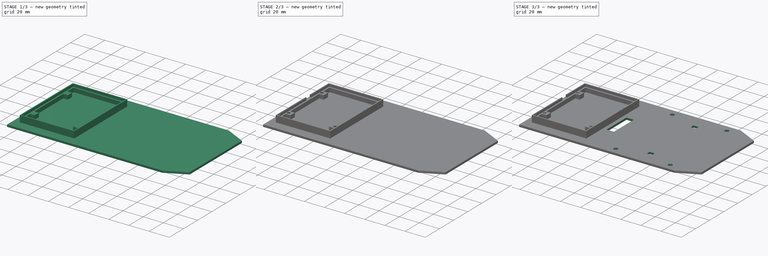
[diagram: build sequence overview — one tinted view per stage of 3, left to right]
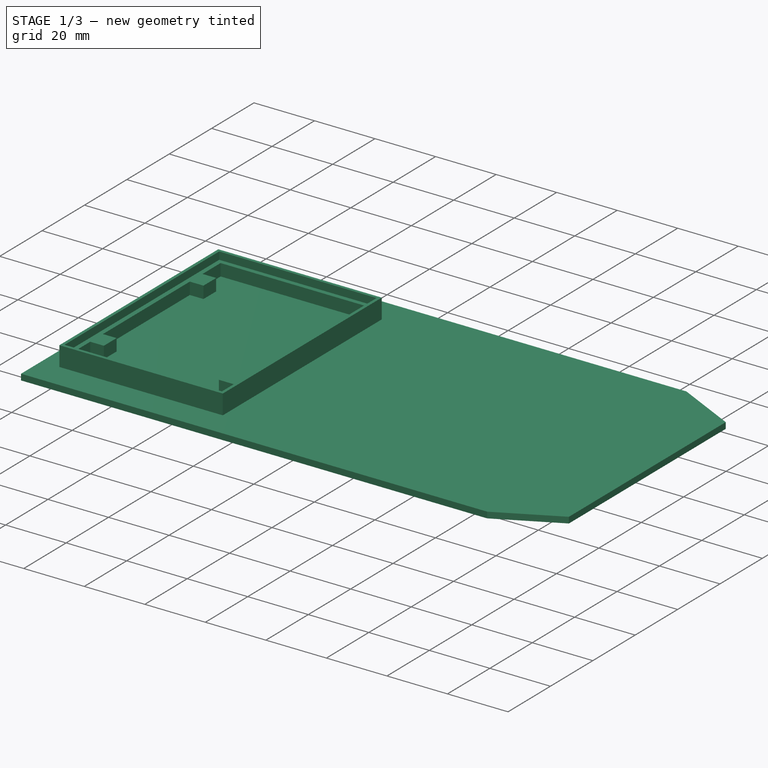
[diagram: stage 1 of 3 — iso view after this stage's code; geometry added in this stage tinted green]
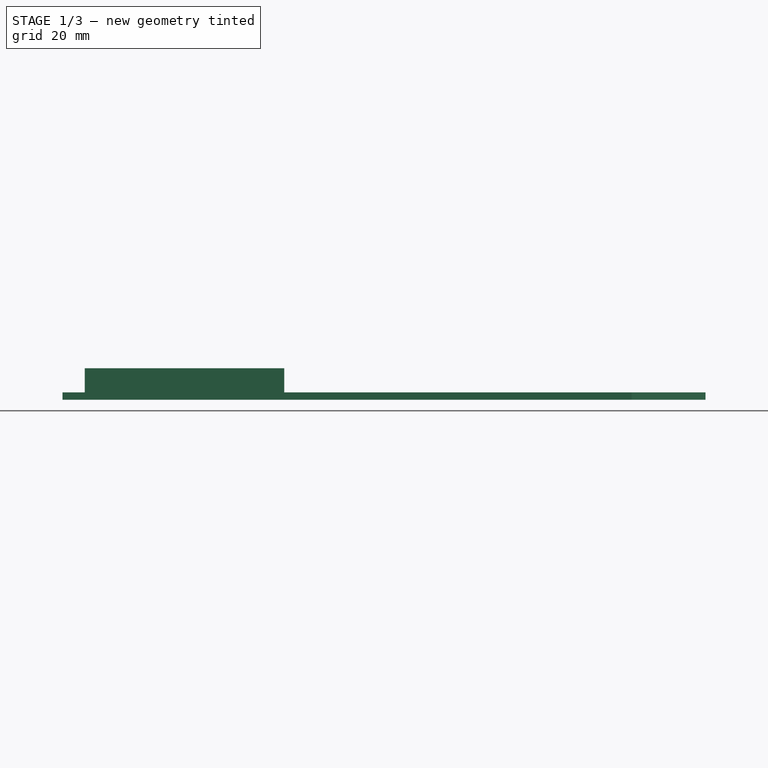
[diagram: stage 1 of 3 — front view after this stage's code; geometry added in this stage tinted green]
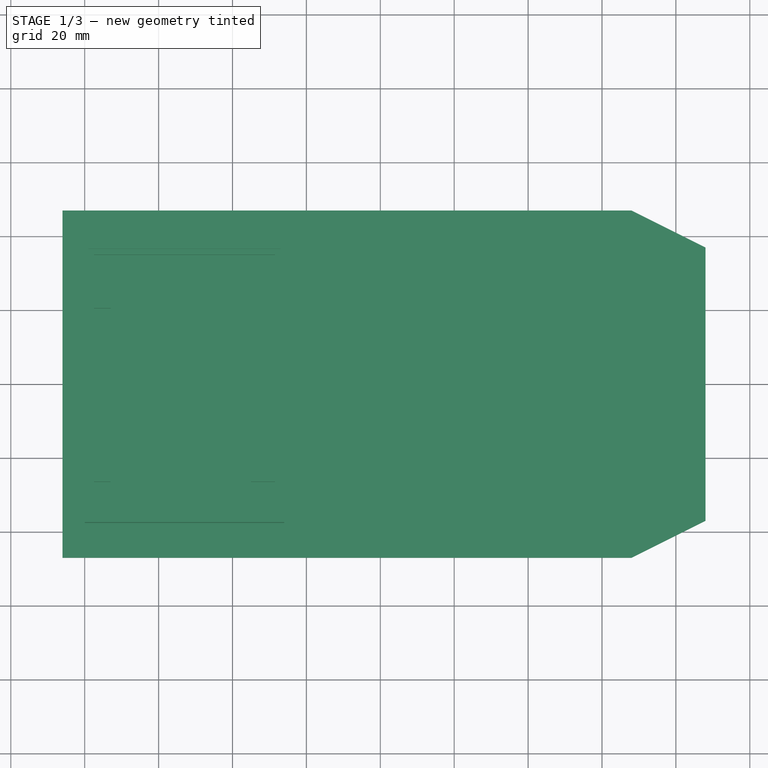
[diagram: stage 1 of 3 — top view after this stage's code; geometry added in this stage tinted green]
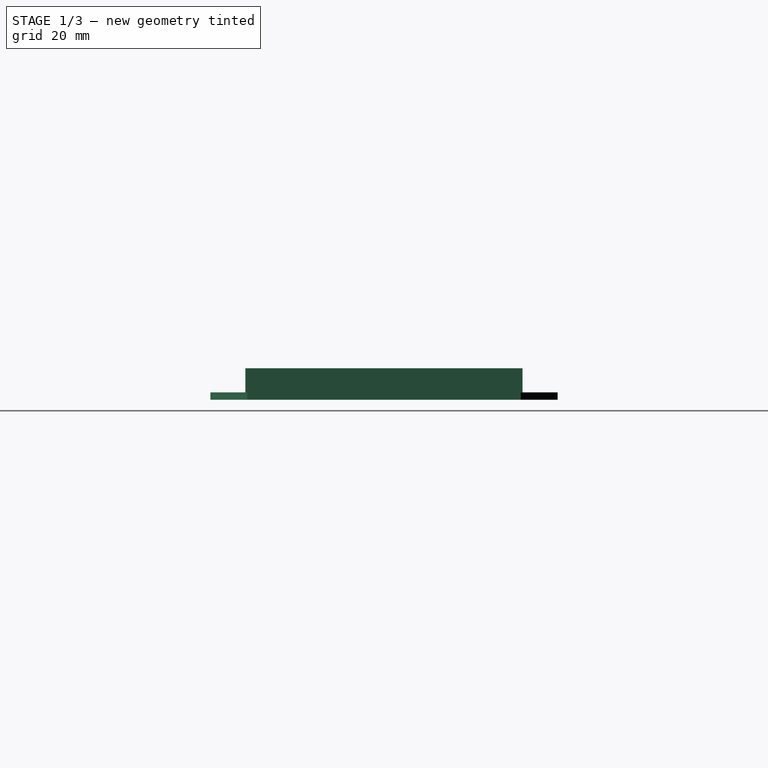
[diagram: stage 1 of 3 — right view after this stage's code; geometry added in this stage tinted green]
FCSTD DOCUMENT  (FreeCAD 0.16R6706 (Git))
Label: base-superior(2)
License: All rights reserved
LicenseURL: http://en.wikipedia.org/wiki/All_rights_reserved
objects: Sketcher::SketchObject×8, PartDesign::Pocket×5, PartDesign::Pad×3
note: 24 computed .brp shape members not serialized (recipe doc carries the construction recipe); baked Part::Feature solids carry a one-line shape summary decoded from their .brp

FEATURE [Sketcher::SketchObject] Sketch
  sketch-geometry (6):
    g0: LineSegment StartX=-26 StartY=47 StartZ=0 EndX=-26 EndY=-47 EndZ=0
    g1: LineSegment StartX=-26 StartY=-47 StartZ=0 EndX=128 EndY=-47 EndZ=0
    g2: LineSegment StartX=128 StartY=47 StartZ=0 EndX=-26 EndY=47 EndZ=0
    g3: LineSegment StartX=148 StartY=37 StartZ=0 EndX=148 EndY=-37 EndZ=0
    g4: LineSegment StartX=128 StartY=47 StartZ=0 EndX=148 EndY=37 EndZ=0
    g5: LineSegment StartX=148 StartY=-37 StartZ=0 EndX=128 EndY=-47 EndZ=0
  constraints (16):
    c: Coincident(g0,g1)
    c: Coincident(g2,g0)
    c: Vertical(g0)
    c: Horizontal(g1)
    c: Horizontal(g2)
    c: DistanceX(g0,g-1) = 26
    c: DistanceX(g-1,g2) = 128
    c: Symmetric(g1,g2,g-1)
    c: DistanceY(g-1,g0) = 47
    c: DistanceX(g2,g3) = 20
    c: Symmetric(g3,g3,g-1)
    c: DistanceY(g3,g2) = 10
    c: Coincident(g2,g4)
    c: Coincident(g3,g4)
    c: Coincident(g3,g5)
    c: Coincident(g1,g5)
FEATURE [PartDesign::Pad] Pad
  Length = 2
  Length2 = 100
  Sketch = -> Sketch
  Type = 0
FEATURE [Sketcher::SketchObject] Sketch001
  Placement = pos=(0,0,2) rot=(0,0,1;0rad)
  Support = -> Pad [Face8]
  sketch-geometry (20):
    g0: LineSegment StartX=-20 StartY=37.5 StartZ=0 EndX=34 EndY=37.5 EndZ=0
    g1: LineSegment StartX=34 StartY=37.5 StartZ=0 EndX=34 EndY=-37.5 EndZ=0
    g2: LineSegment StartX=34 StartY=-37.5 StartZ=0 EndX=-20 EndY=-37.5 EndZ=0
    g3: LineSegment StartX=-20 StartY=-37.5 StartZ=0 EndX=-20 EndY=37.5 EndZ=0
    g4: LineSegment StartX=-17.5 StartY=35 StartZ=0 EndX=31.5 EndY=35 EndZ=0
    g5: LineSegment StartX=31.5 StartY=-35 StartZ=0 EndX=-17.5 EndY=-35 EndZ=0
    g6: LineSegment StartX=-17.5 StartY=-20.5 StartZ=0 EndX=-13 EndY=-20.5 EndZ=0
    g7: LineSegment StartX=-13 StartY=-20.5 StartZ=0 EndX=-13 EndY=-26.5 EndZ=0
    g8: LineSegment StartX=-13 StartY=-26.5 StartZ=0 EndX=-17.5 EndY=-26.5 EndZ=0
    g9: LineSegment StartX=25 StartY=-20.5 StartZ=0 EndX=31.5 EndY=-20.5 EndZ=0
    g10: LineSegment StartX=31.5 StartY=-26.5 StartZ=0 EndX=25 EndY=-26.5 EndZ=0
    g11: LineSegment StartX=25 StartY=-26.5 StartZ=0 EndX=25 EndY=-20.5 EndZ=0
    g12: LineSegment StartX=-17.5 StartY=26.5 StartZ=0 EndX=-13 EndY=26.5 EndZ=0
    g13: LineSegment StartX=-13 StartY=26.5 StartZ=0 EndX=-13 EndY=20.5 EndZ=0
    g14: LineSegment StartX=-13 StartY=20.5 StartZ=0 EndX=-17.5 EndY=20.5 EndZ=0
    g15: LineSegment StartX=-17.5 StartY=20.5 StartZ=0 EndX=-17.5 EndY=-20.5 EndZ=0
    g16: LineSegment StartX=-17.5 StartY=35 StartZ=0 EndX=-17.5 EndY=26.5 EndZ=0
    g17: LineSegment StartX=-17.5 StartY=-26.5 StartZ=0 EndX=-17.5 EndY=-35 EndZ=0
    g18: LineSegment StartX=31.5 StartY=-26.5 StartZ=0 EndX=31.5 EndY=-35 EndZ=0
    g19: LineSegment StartX=31.5 StartY=-20.5 StartZ=0 EndX=31.5 EndY=35 EndZ=0
  constraints (51):
    c: Coincident(g0,g1)
    c: Coincident(g1,g2)
    c: Coincident(g2,g3)
    c: Coincident(g3,g0)
    c: Horizontal(g0)
    c: Horizontal(g2)
    c: Vertical(g1)
    c: Vertical(g3)
    c: Horizontal(g4)
    c: Horizontal(g5)
    c: DistanceX(g0,g-1) = 20
    c: DistanceX(g4,g-1) = 17.5
    c: DistanceY(g-1,g0) = 37.5
    c: DistanceY(g-1,g4) = 35
    c: Symmetric(g4,g5,g-1)
    c: Symmetric(g2,g0,g-1)
    c: DistanceX(g0,g0) = 54
    c: DistanceX(g4,g4) = 49
    c: Coincident(g6,g7)
    c: Coincident(g7,g8)
    c: Horizontal(g6)
    c: Horizontal(g8)
    c: Vertical(g7)
    c: Coincident(g10,g11)
    c: Coincident(g11,g9)
    c: Horizontal(g9)
    c: Horizontal(g10)
    c: Vertical(g11)
    c: Coincident(g12,g13)
    c: Coincident(g13,g14)
    c: Horizontal(g12)
    c: Horizontal(g14)
    c: Vertical(g13)
    c: Symmetric(g6,g14,g-1)
    c: Symmetric(g13,g6,g-1)
    c: Symmetric(g8,g12,g-1)
    c: DistanceX(g5,g8) = 0
    c: DistanceX(g8,g7) = 4.5
    c: DistanceY(g7,g6) = 6
    c: DistanceX(g10,g5) = 0
    c: DistanceX(g9,g9) = 6.5
    c: DistanceY(g5,g8) = 8.5
    c: DistanceY(g5,g10) = 8.5
    c: DistanceY(g10,g9) = 6
    c: Coincident(g14,g15)
    c: Coincident(g6,g15)
    c: Coincident(g4,g16)
    c: Coincident(g8,g17)
    c: Coincident(g5,g17)
    c: Coincident(g4,g19)
    c: Coincident(g9,g19)
FEATURE [PartDesign::Pad] Pad001
  Length = 4
  Length2 = 100
  Sketch = -> Sketch001
  Type = 0
FEATURE [Sketcher::SketchObject] Sketch002
  Placement = pos=(0,0,6) rot=(0,0,1;0rad)
  Support = -> Pad001 [Face13]
  sketch-geometry (8):
    g0: LineSegment StartX=-20 StartY=37.5 StartZ=0 EndX=34 EndY=37.5 EndZ=0
    g1: LineSegment StartX=34 StartY=37.5 StartZ=0 EndX=34 EndY=-37.5 EndZ=0
    g2: LineSegment StartX=34 StartY=-37.5 StartZ=0 EndX=-20 EndY=-37.5 EndZ=0
    g3: LineSegment StartX=-20 StartY=-37.5 StartZ=0 EndX=-20 EndY=37.5 EndZ=0
    g4: LineSegment StartX=-19 StartY=36.5 StartZ=0 EndX=33 EndY=36.5 EndZ=0
    g5: LineSegment StartX=33 StartY=36.5 StartZ=0 EndX=33 EndY=-36.5 EndZ=0
    g6: LineSegment StartX=33 StartY=-36.5 StartZ=0 EndX=-19 EndY=-36.5 EndZ=0
    g7: LineSegment StartX=-19 StartY=-36.5 StartZ=0 EndX=-19 EndY=36.5 EndZ=0
  constraints (24):
    c: Coincident(g0,g1)
    c: Coincident(g1,g2)
    c: Coincident(g2,g3)
    c: Coincident(g3,g0)
    c: Horizontal(g0)
    c: Horizontal(g2)
    c: Vertical(g1)
    c: Vertical(g3)
    c: Coincident(g4,g5)
    c: Coincident(g5,g6)
    c: Coincident(g6,g7)
    c: Coincident(g7,g4)
    c: Horizontal(g4)
    c: Horizontal(g6)
    c: Vertical(g5)
    c: Vertical(g7)
    c: Symmetric(g0,g2,g-1)
    c: Symmetric(g4,g6,g-1)
    c: DistanceY(g-1,g0) = 37.5
    c: DistanceY(g-1,g4) = 36.5
    c: DistanceX(g0,g-1) = 20
    c: DistanceX(g4,g-1) = 19
    c: DistanceX(g4,g4) = 52
    c: DistanceX(g0,g0) = 54
FEATURE [PartDesign::Pad] Pad002
  Length = 2.5
  Length2 = 100
  Sketch = -> Sketch002
  Type = 0
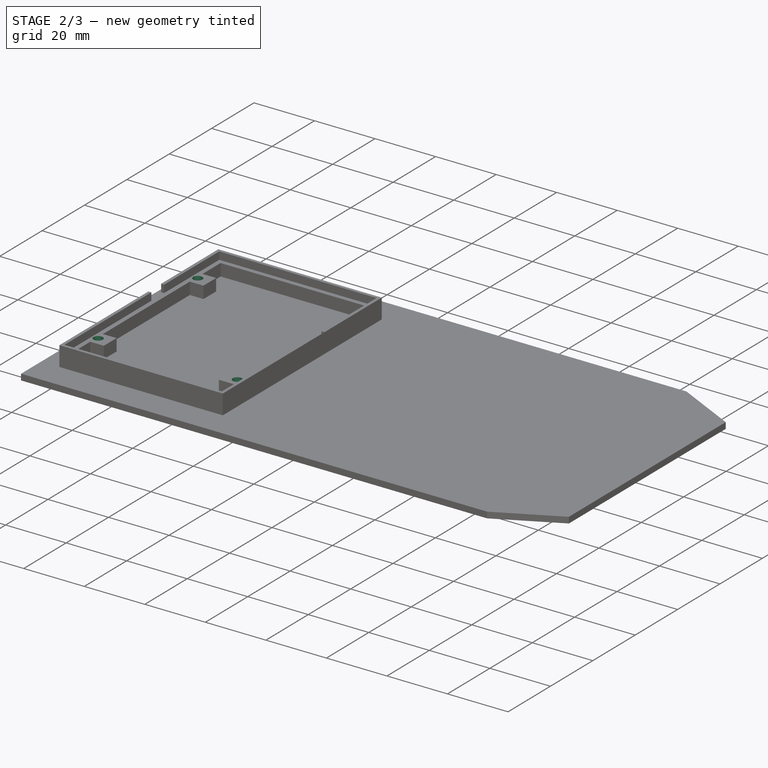
[diagram: stage 2 of 3 — iso view after this stage's code; geometry added in this stage tinted green]
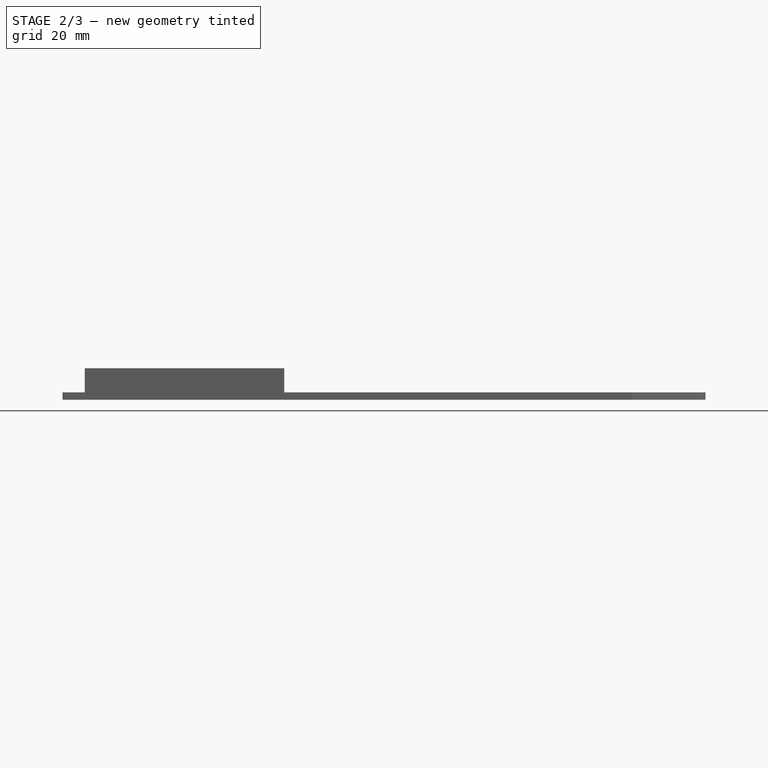
[diagram: stage 2 of 3 — front view after this stage's code; geometry added in this stage tinted green]
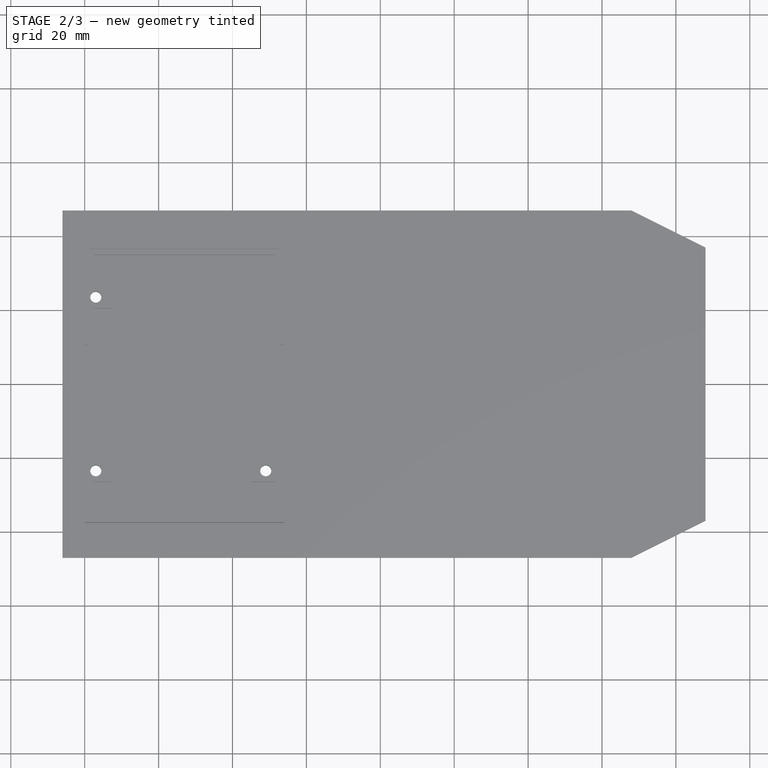
[diagram: stage 2 of 3 — top view after this stage's code; geometry added in this stage tinted green]
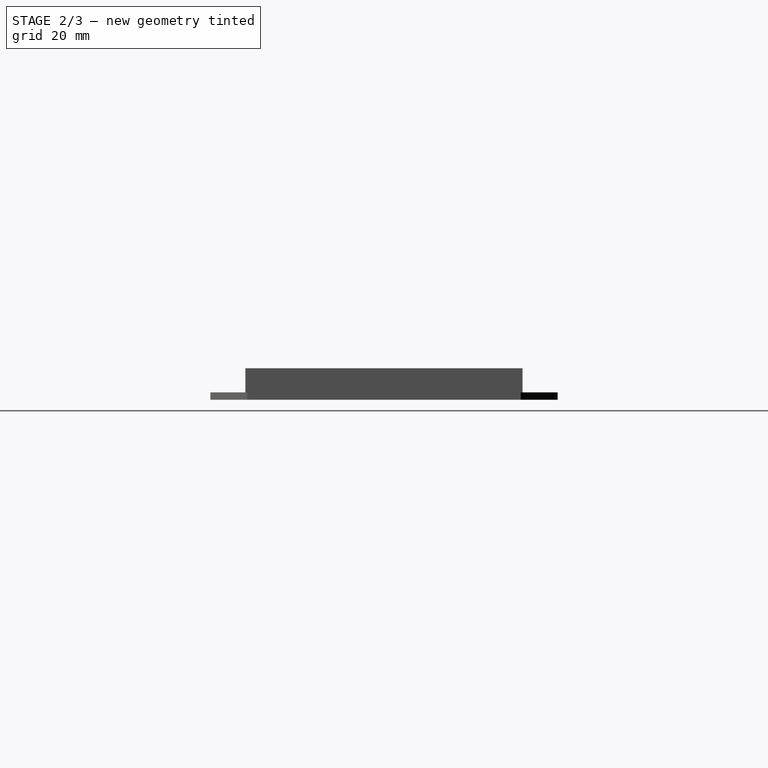
[diagram: stage 2 of 3 — right view after this stage's code; geometry added in this stage tinted green]
FEATURE [Sketcher::SketchObject] Sketch003
  Placement = pos=(0,0,6) rot=(0,0,1;0rad)
  Support = -> Pad002 [Face6]
  sketch-geometry (3):
    g0: Circle CenterX=-17 CenterY=23.5 CenterZ=0 NormalX=0 NormalY=0 NormalZ=1 Radius=1.5
    g1: Circle CenterX=-17 CenterY=-23.5 CenterZ=0 NormalX=0 NormalY=0 NormalZ=1 Radius=1.5
    g2: Circle CenterX=29 CenterY=-23.5 CenterZ=0 NormalX=0 NormalY=0 NormalZ=1 Radius=1.5
  constraints (8):
    c: Radius(g0) = 1.5
    c: Equal(g0,g1)
    c: Equal(g0,g2)
    c: Symmetric(g1,g0,g-1)
    c: DistanceY(g1,g-1) = 23.5
    c: DistanceY(g2,g-1) = 23.5
    c: DistanceX(g1,g-1) = 17
    c: DistanceX(g-1,g2) = 29
FEATURE [PartDesign::Pocket] Pocket
  Length = 5
  Sketch = -> Sketch003
  Type = 1
FEATURE [Sketcher::SketchObject] Sketch004
  Placement = pos=(0,0,8.5) rot=(0,0,1;0rad)
  Support = -> Pocket [Face1]
  sketch-geometry (8):
    g0: LineSegment StartX=-20 StartY=4.5 StartZ=0 EndX=-18.9717 EndY=4.5 EndZ=0
    g1: LineSegment StartX=-18.9717 StartY=4.5 StartZ=0 EndX=-18.9717 EndY=10.5 EndZ=0
    g2: LineSegment StartX=-18.9717 StartY=10.5 StartZ=0 EndX=-20 EndY=10.5 EndZ=0
    g3: LineSegment StartX=-20 StartY=10.5 StartZ=0 EndX=-20 EndY=4.5 EndZ=0
    g4: LineSegment StartX=32.9061 StartY=10.5 StartZ=0 EndX=33.9732 EndY=10.5 EndZ=0
    g5: LineSegment StartX=33.9732 StartY=10.5 StartZ=0 EndX=33.9732 EndY=4.5 EndZ=0
    g6: LineSegment StartX=33.9732 StartY=4.5 StartZ=0 EndX=32.9061 EndY=4.5 EndZ=0
    g7: LineSegment StartX=32.9061 StartY=4.5 StartZ=0 EndX=32.9061 EndY=10.5 EndZ=0
  constraints (20):
    c: Coincident(g0,g1)
    c: Coincident(g1,g2)
    c: Coincident(g2,g3)
    c: Coincident(g3,g0)
    c: Horizontal(g0)
    c: Horizontal(g2)
    c: Vertical(g1)
    c: Vertical(g3)
    c: DistanceY(g-1,g1) = 10.5
    c: DistanceY(g-1,g0) = 4.5
    c: Coincident(g4,g5)
    c: Coincident(g5,g6)
    c: Coincident(g6,g7)
    c: Coincident(g7,g4)
    c: Horizontal(g4)
    c: Horizontal(g6)
    c: Vertical(g5)
    c: Vertical(g7)
    c: DistanceY(g-1,g4) = 10.5
    c: DistanceY(g-1,g6) = 4.5
FEATURE [PartDesign::Pocket] Pocket001
  Length = 2.5
  Sketch = -> Sketch004
  Type = 0
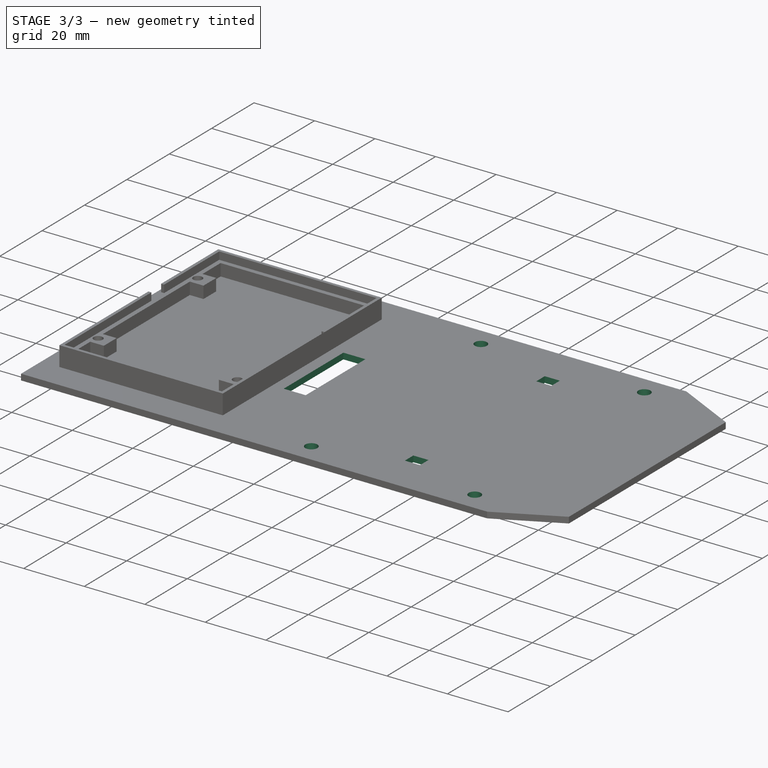
[diagram: stage 3 of 3 — iso view after this stage's code; geometry added in this stage tinted green]
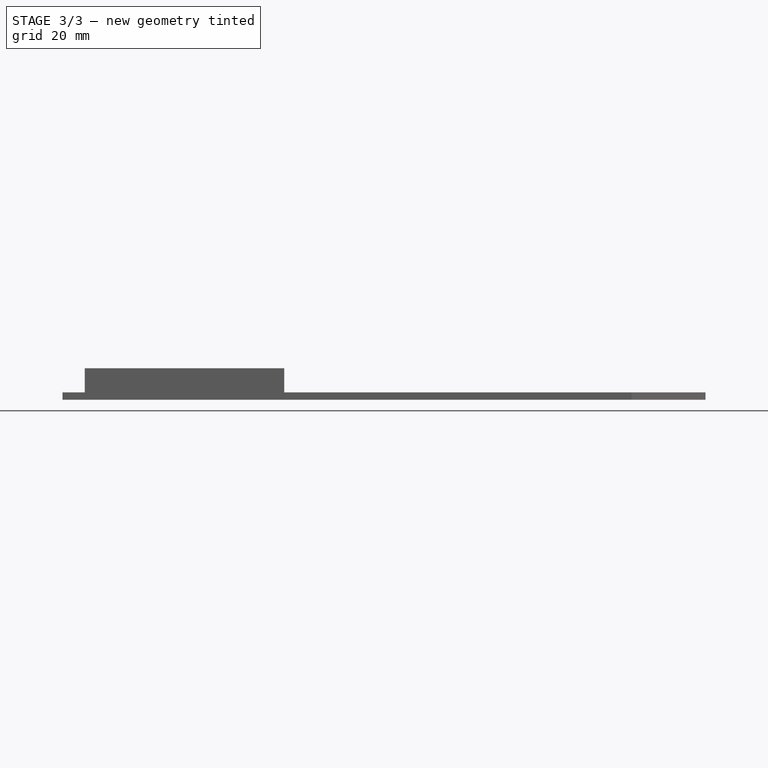
[diagram: stage 3 of 3 — front view after this stage's code; geometry added in this stage tinted green]
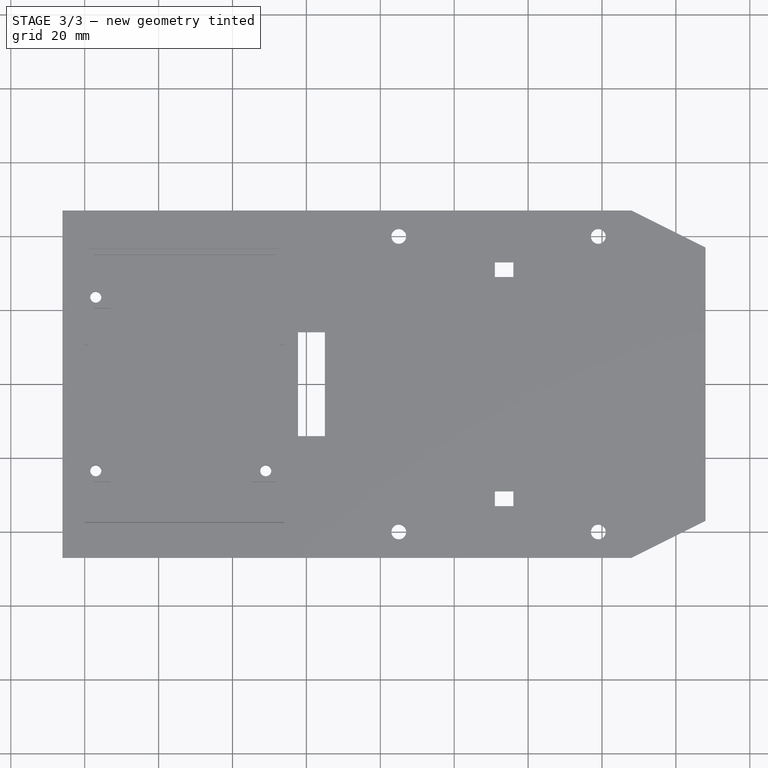
[diagram: stage 3 of 3 — top view after this stage's code; geometry added in this stage tinted green]
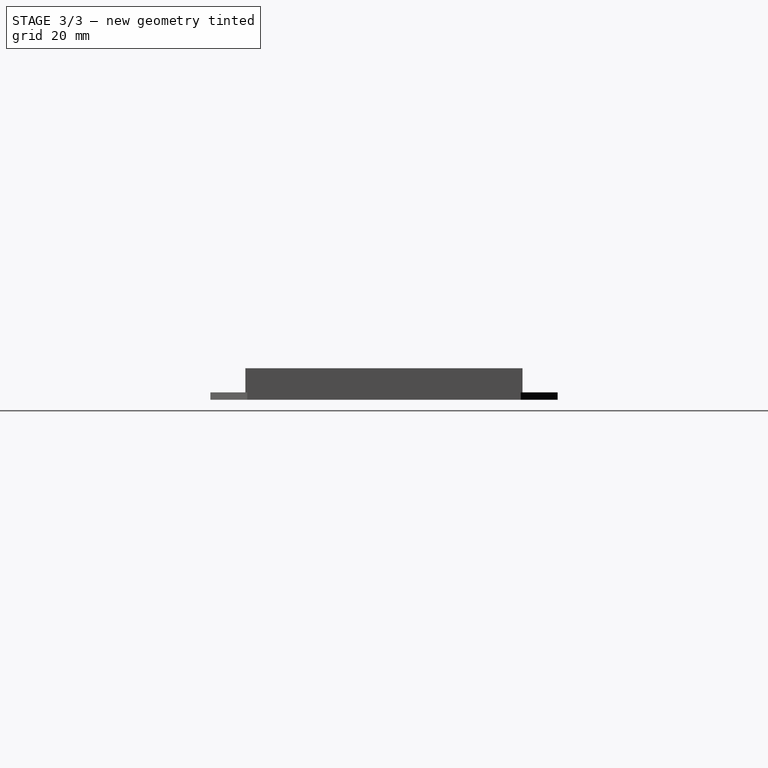
[diagram: stage 3 of 3 — right view after this stage's code; geometry added in this stage tinted green]
FEATURE [Sketcher::SketchObject] Sketch005
  Placement = pos=(0,0,2) rot=(0,0,1;0rad)
  Support = -> Pocket001 [Face17]
  sketch-geometry (8):
    g0: LineSegment StartX=91 StartY=33 StartZ=0 EndX=96 EndY=33 EndZ=0
    g1: LineSegment StartX=96 StartY=33 StartZ=0 EndX=96 EndY=29 EndZ=0
    g2: LineSegment StartX=96 StartY=29 StartZ=0 EndX=91 EndY=29 EndZ=0
    g3: LineSegment StartX=91 StartY=29 StartZ=0 EndX=91 EndY=33 EndZ=0
    g4: LineSegment StartX=91 StartY=-29 StartZ=0 EndX=96 EndY=-29 EndZ=0
    g5: LineSegment StartX=96 StartY=-29 StartZ=0 EndX=96 EndY=-33 EndZ=0
    g6: LineSegment StartX=96 StartY=-33 StartZ=0 EndX=91 EndY=-33 EndZ=0
    g7: LineSegment StartX=91 StartY=-33 StartZ=0 EndX=91 EndY=-29 EndZ=0
  constraints (23):
    c: Coincident(g0,g1)
    c: Coincident(g1,g2)
    c: Coincident(g2,g3)
    c: Coincident(g3,g0)
    c: Horizontal(g0)
    c: Horizontal(g2)
    c: Vertical(g1)
    c: Vertical(g3)
    c: Coincident(g4,g5)
    c: Coincident(g5,g6)
    c: Coincident(g6,g7)
    c: Coincident(g7,g4)
    c: Horizontal(g4)
    c: Horizontal(g6)
    c: Vertical(g5)
    c: Vertical(g7)
    c: Symmetric(g2,g4,g-1)
    c: Symmetric(g1,g4,g-1)
    c: DistanceY(g-1,g2) = 29
    c: DistanceY(g-1,g0) = 33
    c: Symmetric(g0,g6,g-1)
    c: DistanceX(g-1,g4) = 91
    c: DistanceX(g-1,g4) = 96
FEATURE [PartDesign::Pocket] Pocket002
  Length = 5
  Sketch = -> Sketch005
  Type = 1
FEATURE [Sketcher::SketchObject] Sketch006
  Placement = pos=(0,0,2) rot=(0,0,1;0rad)
  Support = -> Pocket002 [Face17]
  sketch-geometry (4):
    g0: Circle CenterX=119 CenterY=40 CenterZ=0 NormalX=0 NormalY=0 NormalZ=1 Radius=2
    g1: Circle CenterX=65 CenterY=40 CenterZ=0 NormalX=0 NormalY=0 NormalZ=1 Radius=2
    g2: Circle CenterX=119 CenterY=-40 CenterZ=0 NormalX=0 NormalY=0 NormalZ=1 Radius=2
    g3: Circle CenterX=65 CenterY=-40 CenterZ=0 NormalX=0 NormalY=0 NormalZ=1 Radius=2
  constraints (10):
    c: Radius(g1) = 2
    c: Equal(g1,g0)
    c: Equal(g1,g3)
    c: Equal(g1,g2)
    c: Symmetric(g3,g1,g-1)
    c: Symmetric(g0,g2,g-1)
    c: DistanceX(g-1,g1) = 65
    c: DistanceX(g1,g0) = 54
    c: DistanceY(g-1,g1) = 40
    c: DistanceY(g-1,g0) = 40
FEATURE [PartDesign::Pocket] Pocket003
  Length = 5
  Sketch = -> Sketch006
  Type = 1
FEATURE [Sketcher::SketchObject] Sketch007
  Placement = pos=(0,0,2) rot=(0,0,1;0rad)
  Support = -> Pocket003 [Face17]
  sketch-geometry (4):
    g0: LineSegment StartX=37.7252 StartY=14.0808 StartZ=0 EndX=45 EndY=14.0808 EndZ=0
    g1: LineSegment StartX=45 StartY=14.0808 StartZ=0 EndX=45 EndY=-14.0808 EndZ=0
    g2: LineSegment StartX=45 StartY=-14.0808 StartZ=0 EndX=37.7252 EndY=-14.0808 EndZ=0
    g3: LineSegment StartX=37.7252 StartY=-14.0808 StartZ=0 EndX=37.7252 EndY=14.0808 EndZ=0
  constraints (9):
    c: Coincident(g0,g1)
    c: Coincident(g1,g2)
    c: Coincident(g2,g3)
    c: Coincident(g3,g0)
    c: Horizontal(g0)
    c: Horizontal(g2)
    c: Vertical(g1)
    c: Vertical(g3)
    c: Symmetric(g0,g2,g-1)
FEATURE [PartDesign::Pocket] Pocket004
  Length = 5
  Sketch = -> Sketch007
  Type = 0
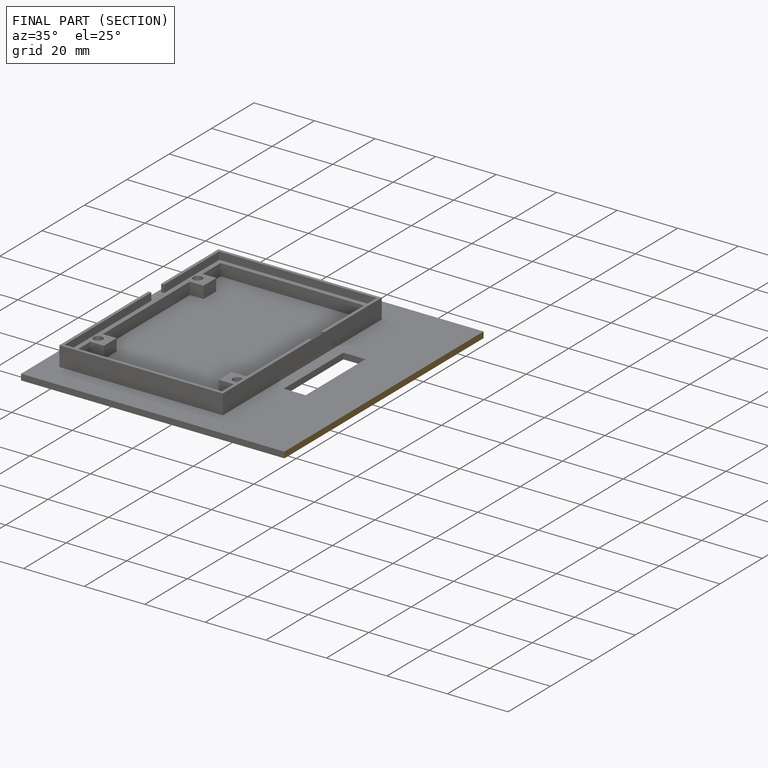
[diagram: finished part — half-section view (interior)]
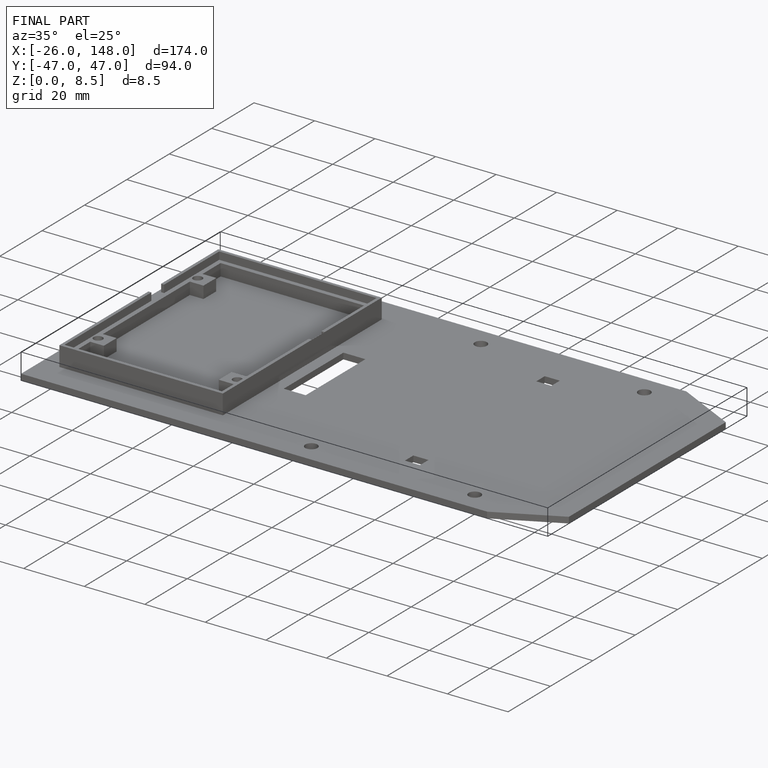
[diagram: finished part — iso view with bounding-box wireframe]
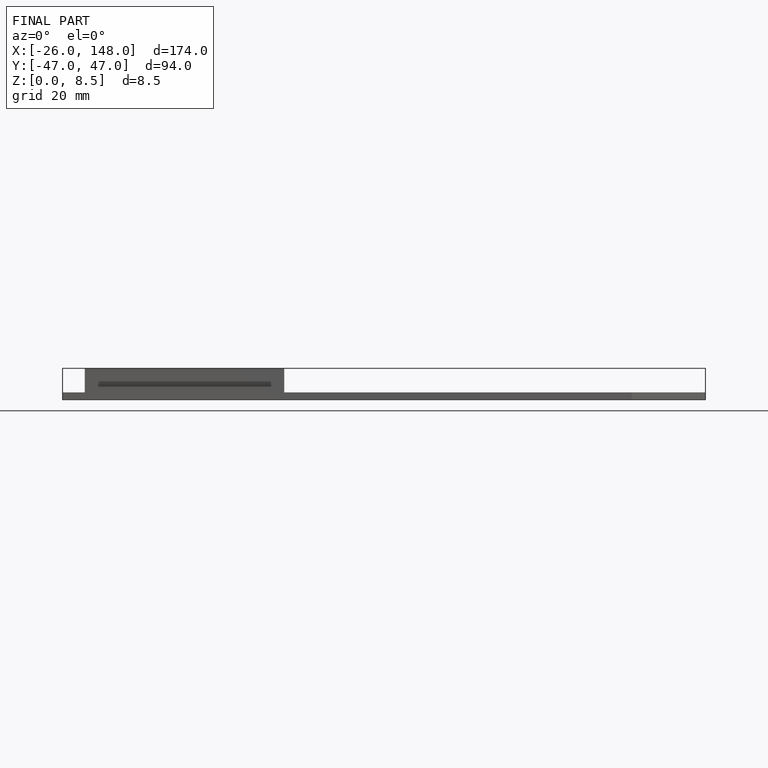
[diagram: finished part — front view with bounding-box wireframe]
